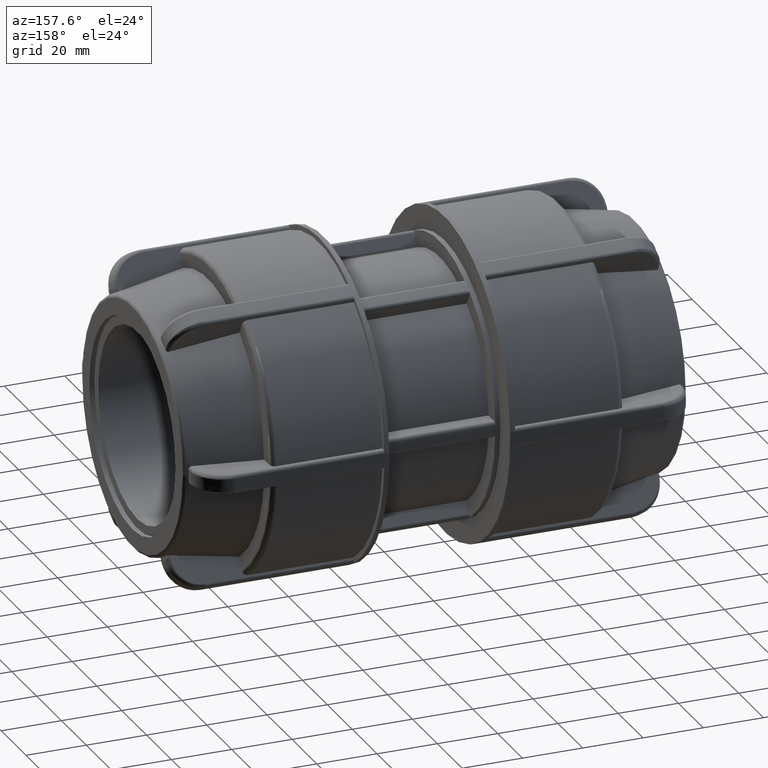
[diagram: clean part render]
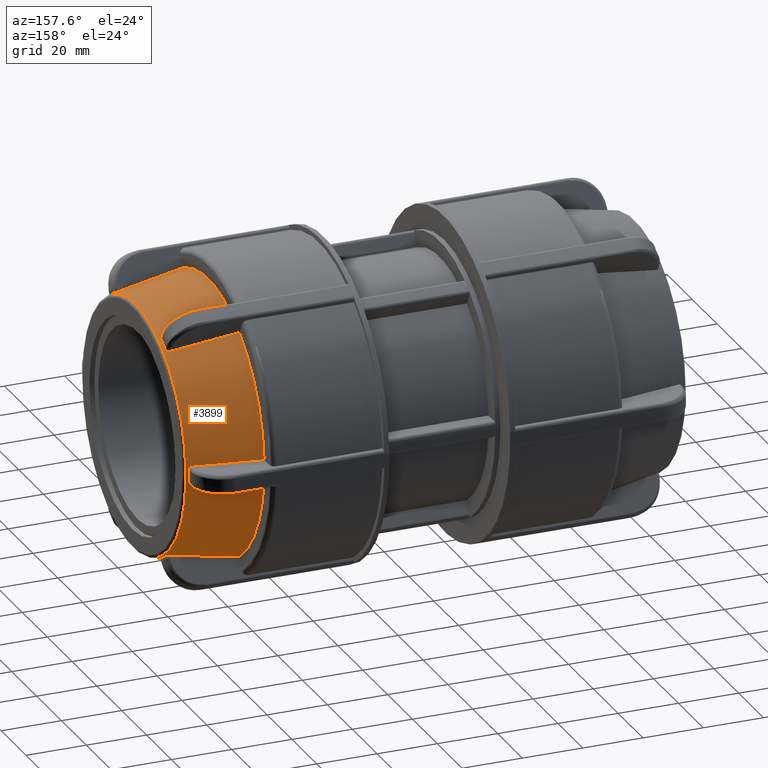
[diagram: same view with one face highlighted and labeled with its STEP entity id]
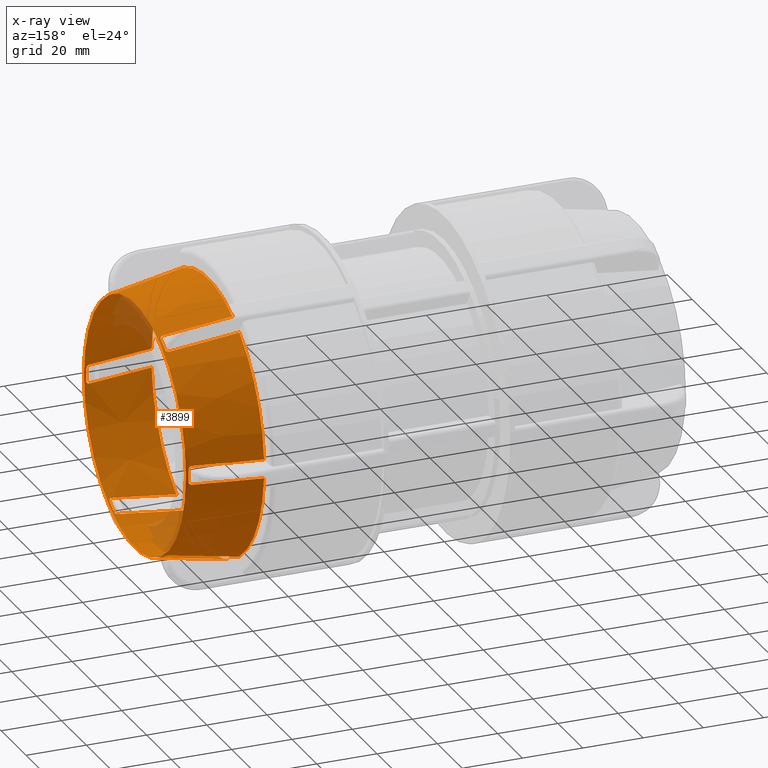
[diagram: x-ray of the same camera — body ghosted, the highlighted face saturated]
A machine part, auxiliary view. The second image highlights one B-rep face of the part: STEP entity #3899.
The next image is the same camera in x-ray: the body ghosted, the highlighted face saturated — about 6% of this face is hidden behind the body in this view.
In plain terms, the highlighted conical surface has half-angle 10 deg.
Its self-contained STEP definition (entity closure, byte-faithful):
#16=CONICAL_SURFACE('',#4328,43.1584954333735,10.);
#55=(
BOUNDED_CURVE()
B_SPLINE_CURVE(2,(#7132,#7133,#7134),.UNSPECIFIED.,.F.,.F.)
B_SPLINE_CURVE_WITH_KNOTS((3,3),(0.112674175919574,2.37425823566291),
 .UNSPECIFIED.)
CURVE()
GEOMETRIC_REPRESENTATION_ITEM()
RATIONAL_B_SPLINE_CURVE((1.00010313567523,1.00108663198251,1.))
REPRESENTATION_ITEM('')
);
#56=(
BOUNDED_CURVE()
B_SPLINE_CURVE(2,(#7295,#7296,#7297),.UNSPECIFIED.,.F.,.F.)
B_SPLINE_CURVE_WITH_KNOTS((3,3),(0.112674176025271,2.37425823566291),
 .UNSPECIFIED.)
CURVE()
GEOMETRIC_REPRESENTATION_ITEM()
RATIONAL_B_SPLINE_CURVE((1.00010313568858,1.00108663212211,1.))
REPRESENTATION_ITEM('')
);
#57=(
BOUNDED_CURVE()
B_SPLINE_CURVE(2,(#7458,#7459,#7460),.UNSPECIFIED.,.F.,.F.)
B_SPLINE_CURVE_WITH_KNOTS((3,3),(0.112674172713,2.37425823566291),
 .UNSPECIFIED.)
CURVE()
GEOMETRIC_REPRESENTATION_ITEM()
RATIONAL_B_SPLINE_CURVE((1.00010313539511,1.00108662906211,1.))
REPRESENTATION_ITEM('')
);
#58=(
BOUNDED_CURVE()
B_SPLINE_CURVE(2,(#7621,#7622,#7623),.UNSPECIFIED.,.F.,.F.)
B_SPLINE_CURVE_WITH_KNOTS((3,3),(0.112674172645509,2.37425823566291),
 .UNSPECIFIED.)
CURVE()
GEOMETRIC_REPRESENTATION_ITEM()
RATIONAL_B_SPLINE_CURVE((1.00010313538415,1.00108662894722,1.))
REPRESENTATION_ITEM('')
);
#59=(
BOUNDED_CURVE()
B_SPLINE_CURVE(2,(#7784,#7785,#7786),.UNSPECIFIED.,.F.,.F.)
B_SPLINE_CURVE_WITH_KNOTS((3,3),(0.112674175595181,2.37425823566291),
 .UNSPECIFIED.)
CURVE()
GEOMETRIC_REPRESENTATION_ITEM()
RATIONAL_B_SPLINE_CURVE((1.00010313564685,1.00108663168655,1.))
REPRESENTATION_ITEM('')
);
#60=(
BOUNDED_CURVE()
B_SPLINE_CURVE(2,(#7789,#7790,#7791),.UNSPECIFIED.,.F.,.F.)
B_SPLINE_CURVE_WITH_KNOTS((3,3),(0.,2.261584060177),.UNSPECIFIED.)
CURVE()
GEOMETRIC_REPRESENTATION_ITEM()
RATIONAL_B_SPLINE_CURVE((1.,1.00108663154662,1.00010313563346))
REPRESENTATION_ITEM('')
);
#61=(
BOUNDED_CURVE()
B_SPLINE_CURVE(2,(#7810,#7811,#7812),.UNSPECIFIED.,.F.,.F.)
B_SPLINE_CURVE_WITH_KNOTS((3,3),(0.,2.26158405973734),.UNSPECIFIED.)
CURVE()
GEOMETRIC_REPRESENTATION_ITEM()
RATIONAL_B_SPLINE_CURVE((1.,1.0010866318827,1.00010313566577))
REPRESENTATION_ITEM('')
);
#62=(
BOUNDED_CURVE()
B_SPLINE_CURVE(2,(#7831,#7832,#7833),.UNSPECIFIED.,.F.,.F.)
B_SPLINE_CURVE_WITH_KNOTS((3,3),(0.,2.26158406294979),.UNSPECIFIED.)
CURVE()
GEOMETRIC_REPRESENTATION_ITEM()
RATIONAL_B_SPLINE_CURVE((1.,1.00108662906256,1.00010313539516))
REPRESENTATION_ITEM('')
);
#63=(
BOUNDED_CURVE()
B_SPLINE_CURVE(2,(#7852,#7853,#7854),.UNSPECIFIED.,.F.,.F.)
B_SPLINE_CURVE_WITH_KNOTS((3,3),(0.,2.26158406273139),.UNSPECIFIED.)
CURVE()
GEOMETRIC_REPRESENTATION_ITEM()
RATIONAL_B_SPLINE_CURVE((1.,1.00108662926741,1.0001031354148))
REPRESENTATION_ITEM('')
);
#64=(
BOUNDED_CURVE()
B_SPLINE_CURVE(2,(#7873,#7874,#7875),.UNSPECIFIED.,.F.,.F.)
B_SPLINE_CURVE_WITH_KNOTS((3,3),(0.,2.26158405962467),.UNSPECIFIED.)
CURVE()
GEOMETRIC_REPRESENTATION_ITEM()
RATIONAL_B_SPLINE_CURVE((1.,1.00108663202404,1.00010313567928))
REPRESENTATION_ITEM('')
);
#65=(
BOUNDED_CURVE()
B_SPLINE_CURVE(2,(#7970,#7971,#7972),.UNSPECIFIED.,.F.,.F.)
B_SPLINE_CURVE_WITH_KNOTS((3,3),(0.,2.26158406269741),.UNSPECIFIED.)
CURVE()
GEOMETRIC_REPRESENTATION_ITEM()
RATIONAL_B_SPLINE_CURVE((1.,1.00108662939929,1.00010313542735))
REPRESENTATION_ITEM('')
);
#66=(
BOUNDED_CURVE()
B_SPLINE_CURVE(2,(#8004,#8005,#8006),.UNSPECIFIED.,.F.,.F.)
B_SPLINE_CURVE_WITH_KNOTS((3,3),(0.112674172837805,2.3742582356629),
 .UNSPECIFIED.)
CURVE()
GEOMETRIC_REPRESENTATION_ITEM()
RATIONAL_B_SPLINE_CURVE((1.00010313541415,1.00108662926151,1.))
REPRESENTATION_ITEM('')
);
#117=B_SPLINE_CURVE_WITH_KNOTS('',3,(#6978,#6979,#6980,#6981,#6982,#6983,
#6984,#6985,#6986,#6987,#6988,#6989,#6990),.UNSPECIFIED.,.F.,.F.,(4,3,2,
2,2,4),(-0.00143953444562622,0.,0.0402779836798522,0.0805559673597044,0.120299891200479,
0.159101218663025),.UNSPECIFIED.);
#120=B_SPLINE_CURVE_WITH_KNOTS('',3,(#7100,#7101,#7102,#7103,#7104,#7105,
#7106,#7107,#7108,#7109,#7110,#7111,#7112),.UNSPECIFIED.,.F.,.F.,(4,2,2,
2,3,4),(-0.159101218663025,-0.120299891200479,-0.0805559673597044,-0.0402779836798522,
0.,0.00143953444622612),.UNSPECIFIED.);
#124=B_SPLINE_CURVE_WITH_KNOTS('',3,(#7189,#7190,#7191,#7192,#7193,#7194,
#7195,#7196,#7197,#7198,#7199,#7200,#7201),.UNSPECIFIED.,.F.,.F.,(4,3,2,
2,2,4),(-0.0014395344456291,0.,0.0402779836798521,0.0805559673597042,0.120299891200479,
0.159101218663025),.UNSPECIFIED.);
#127=B_SPLINE_CURVE_WITH_KNOTS('',3,(#7263,#7264,#7265,#7266,#7267,#7268,
#7269,#7270,#7271,#7272,#7273,#7274,#7275),.UNSPECIFIED.,.F.,.F.,(4,2,2,
2,3,4),(-0.159101218663024,-0.120299891200478,-0.0805559673597042,-0.0402779836798521,
0.,0.00143953444622537),.UNSPECIFIED.);
#131=B_SPLINE_CURVE_WITH_KNOTS('',3,(#7352,#7353,#7354,#7355,#7356,#7357,
#7358,#7359,#7360,#7361,#7362,#7363,#7364),.UNSPECIFIED.,.F.,.F.,(4,3,2,
2,2,4),(-0.00143953444560737,0.,0.0402779836798513,0.0805559673597026,0.120299891200477,
0.159101218663023),.UNSPECIFIED.);
#134=B_SPLINE_CURVE_WITH_KNOTS('',3,(#7426,#7427,#7428,#7429,#7430,#7431,
#7432,#7433,#7434,#7435,#7436,#7437,#7438),.UNSPECIFIED.,.F.,.F.,(4,2,2,
2,3,4),(-0.159101218663025,-0.120299891200478,-0.0805559673597043,-0.0402779836798521,
0.,0.00143953444620478),.UNSPECIFIED.);
#138=B_SPLINE_CURVE_WITH_KNOTS('',3,(#7515,#7516,#7517,#7518,#7519,#7520,
#7521,#7522,#7523,#7524,#7525,#7526,#7527),.UNSPECIFIED.,.F.,.F.,(4,3,2,
2,2,4),(-0.00143953444560912,0.,0.040277983679852,0.0805559673597041,0.120299891200479,
0.159101218663025),.UNSPECIFIED.);
#141=B_SPLINE_CURVE_WITH_KNOTS('',3,(#7589,#7590,#7591,#7592,#7593,#7594,
#7595,#7596,#7597,#7598,#7599,#7600,#7601),.UNSPECIFIED.,.F.,.F.,(4,2,2,
2,3,4),(-0.159101218663025,-0.120299891200478,-0.0805559673597045,-0.0402779836798522,
0.,0.00143953444620219),.UNSPECIFIED.);
#145=B_SPLINE_CURVE_WITH_KNOTS('',3,(#7678,#7679,#7680,#7681,#7682,#7683,
#7684,#7685,#7686,#7687,#7688,#7689,#7690),.UNSPECIFIED.,.F.,.F.,(4,3,2,
2,2,4),(-0.00143953444563195,0.,0.0402779836798521,0.0805559673597042,0.120299891200478,
0.159101218663025),.UNSPECIFIED.);
#148=B_SPLINE_CURVE_WITH_KNOTS('',3,(#7752,#7753,#7754,#7755,#7756,#7757,
#7758,#7759,#7760,#7761,#7762,#7763,#7764),.UNSPECIFIED.,.F.,.F.,(4,2,2,
2,3,4),(-0.159101218663025,-0.120299891200478,-0.0805559673597043,-0.0402779836798521,
0.,0.00143953444622232),.UNSPECIFIED.);
#157=B_SPLINE_CURVE_WITH_KNOTS('',3,(#7974,#7975,#7976,#7977,#7978,#7979,
#7980,#7981,#7982,#7983,#7984,#7985,#7986),.UNSPECIFIED.,.F.,.F.,(4,3,2,
2,2,4),(-0.00143953444561129,0.,0.0402779836798522,0.0805559673597043,0.120299891200478,
0.159101218663024),.UNSPECIFIED.);
#158=B_SPLINE_CURVE_WITH_KNOTS('',3,(#7990,#7991,#7992,#7993,#7994,#7995,
#7996,#7997,#7998,#7999,#8000,#8001,#8002),.UNSPECIFIED.,.F.,.F.,(4,2,2,
2,3,4),(-0.159101218663025,-0.120299891200478,-0.0805559673597042,-0.0402779836798521,
0.,0.00143953444620398),.UNSPECIFIED.);
#209=FACE_BOUND('',#766,.T.);
#513=FACE_OUTER_BOUND('',#765,.T.);
#765=EDGE_LOOP('',(#3480,#3481,#3482,#3483,#3484,#3485,#3486,#3487,#3488,
#3489,#3490,#3491,#3492,#3493,#3494,#3495,#3496,#3497,#3498,#3499,#3500,
#3501,#3502,#3503,#3504,#3505,#3506,#3507,#3508,#3509,#3510,#3511,#3512,
#3513,#3514,#3515));
#766=EDGE_LOOP('',(#3516));
#1396=CIRCLE('',#4200,41.2444660577832);
#1417=CIRCLE('',#4229,41.2444660577832);
#1425=CIRCLE('',#4244,41.2444660577832);
#1433=CIRCLE('',#4259,41.2444660577832);
#1441=CIRCLE('',#4274,41.2444660577832);
#1466=CIRCLE('',#4329,45.3669908667471);
#1467=CIRCLE('',#4330,41.2444660577832);
#1468=CIRCLE('',#4331,45.3669908667471);
#1469=CIRCLE('',#4332,45.3669908667471);
#1470=CIRCLE('',#4333,45.3669908667471);
#1471=CIRCLE('',#4334,45.3669908667471);
#1472=CIRCLE('',#4335,45.3669908667471);
#1473=CIRCLE('',#4336,41.0957081218349);
#1716=VERTEX_POINT('',#6976);
#1717=VERTEX_POINT('',#6977);
#1719=VERTEX_POINT('',#6996);
#1746=VERTEX_POINT('',#7099);
#1750=VERTEX_POINT('',#7130);
#1755=VERTEX_POINT('',#7187);
#1756=VERTEX_POINT('',#7188);
#1758=VERTEX_POINT('',#7207);
#1762=VERTEX_POINT('',#7262);
#1766=VERTEX_POINT('',#7293);
#1771=VERTEX_POINT('',#7350);
#1772=VERTEX_POINT('',#7351);
#1774=VERTEX_POINT('',#7370);
#1778=VERTEX_POINT('',#7425);
#1782=VERTEX_POINT('',#7456);
#1787=VERTEX_POINT('',#7513);
#1788=VERTEX_POINT('',#7514);
#1790=VERTEX_POINT('',#7533);
#1794=VERTEX_POINT('',#7588);
#1798=VERTEX_POINT('',#7619);
#1803=VERTEX_POINT('',#7676);
#1804=VERTEX_POINT('',#7677);
#1806=VERTEX_POINT('',#7696);
#1810=VERTEX_POINT('',#7751);
#1814=VERTEX_POINT('',#7782);
#1815=VERTEX_POINT('',#7788);
#1819=VERTEX_POINT('',#7809);
#1823=VERTEX_POINT('',#7830);
#1827=VERTEX_POINT('',#7851);
#1831=VERTEX_POINT('',#7872);
#1844=VERTEX_POINT('',#7967);
#1845=VERTEX_POINT('',#7969);
#1846=VERTEX_POINT('',#7973);
#1847=VERTEX_POINT('',#7987);
#1848=VERTEX_POINT('',#7989);
#1849=VERTEX_POINT('',#8003);
#1850=VERTEX_POINT('',#8012);
#2215=EDGE_CURVE('',#1716,#1717,#117,.F.);
#2220=EDGE_CURVE('',#1716,#1719,#1396,.T.);
#2251=EDGE_CURVE('',#1746,#1719,#120,.F.);
#2257=EDGE_CURVE('',#1746,#1750,#55,.T.);
#2264=EDGE_CURVE('',#1755,#1756,#124,.F.);
#2269=EDGE_CURVE('',#1755,#1758,#1417,.T.);
#2276=EDGE_CURVE('',#1762,#1758,#127,.F.);
#2282=EDGE_CURVE('',#1762,#1766,#56,.T.);
#2289=EDGE_CURVE('',#1771,#1772,#131,.F.);
#2294=EDGE_CURVE('',#1771,#1774,#1425,.T.);
#2301=EDGE_CURVE('',#1778,#1774,#134,.F.);
#2307=EDGE_CURVE('',#1778,#1782,#57,.T.);
#2314=EDGE_CURVE('',#1787,#1788,#138,.F.);
#2319=EDGE_CURVE('',#1787,#1790,#1433,.T.);
#2326=EDGE_CURVE('',#1794,#1790,#141,.F.);
#2332=EDGE_CURVE('',#1794,#1798,#58,.T.);
#2339=EDGE_CURVE('',#1803,#1804,#145,.F.);
#2344=EDGE_CURVE('',#1803,#1806,#1441,.T.);
#2351=EDGE_CURVE('',#1810,#1806,#148,.F.);
#2357=EDGE_CURVE('',#1810,#1814,#59,.T.);
#2358=EDGE_CURVE('',#1815,#1717,#60,.T.);
#2363=EDGE_CURVE('',#1819,#1756,#61,.T.);
#2368=EDGE_CURVE('',#1823,#1772,#62,.T.);
#2373=EDGE_CURVE('',#1827,#1788,#63,.T.);
#2378=EDGE_CURVE('',#1831,#1804,#64,.T.);
#2410=EDGE_CURVE('',#1750,#1844,#1466,.T.);
#2411=EDGE_CURVE('',#1844,#1845,#65,.T.);
#2412=EDGE_CURVE('',#1846,#1845,#157,.F.);
#2413=EDGE_CURVE('',#1846,#1847,#1467,.T.);
#2414=EDGE_CURVE('',#1848,#1847,#158,.F.);
#2415=EDGE_CURVE('',#1848,#1849,#66,.T.);
#2416=EDGE_CURVE('',#1849,#1831,#1468,.T.);
#2417=EDGE_CURVE('',#1814,#1827,#1469,.T.);
#2418=EDGE_CURVE('',#1798,#1823,#1470,.T.);
#2419=EDGE_CURVE('',#1782,#1819,#1471,.T.);
#2420=EDGE_CURVE('',#1766,#1815,#1472,.T.);
#2421=EDGE_CURVE('',#1850,#1850,#1473,.T.);
#3480=ORIENTED_EDGE('',*,*,#2358,.T.);
#3481=ORIENTED_EDGE('',*,*,#2215,.F.);
#3482=ORIENTED_EDGE('',*,*,#2220,.T.);
#3483=ORIENTED_EDGE('',*,*,#2251,.F.);
#3484=ORIENTED_EDGE('',*,*,#2257,.T.);
#3485=ORIENTED_EDGE('',*,*,#2410,.T.);
#3486=ORIENTED_EDGE('',*,*,#2411,.T.);
#3487=ORIENTED_EDGE('',*,*,#2412,.F.);
#3488=ORIENTED_EDGE('',*,*,#2413,.T.);
#3489=ORIENTED_EDGE('',*,*,#2414,.F.);
#3490=ORIENTED_EDGE('',*,*,#2415,.T.);
#3491=ORIENTED_EDGE('',*,*,#2416,.T.);
#3492=ORIENTED_EDGE('',*,*,#2378,.T.);
#3493=ORIENTED_EDGE('',*,*,#2339,.F.);
#3494=ORIENTED_EDGE('',*,*,#2344,.T.);
#3495=ORIENTED_EDGE('',*,*,#2351,.F.);
#3496=ORIENTED_EDGE('',*,*,#2357,.T.);
#3497=ORIENTED_EDGE('',*,*,#2417,.T.);
#3498=ORIENTED_EDGE('',*,*,#2373,.T.);
#3499=ORIENTED_EDGE('',*,*,#2314,.F.);
#3500=ORIENTED_EDGE('',*,*,#2319,.T.);
#3501=ORIENTED_EDGE('',*,*,#2326,.F.);
#3502=ORIENTED_EDGE('',*,*,#2332,.T.);
#3503=ORIENTED_EDGE('',*,*,#2418,.T.);
#3504=ORIENTED_EDGE('',*,*,#2368,.T.);
#3505=ORIENTED_EDGE('',*,*,#2289,.F.);
#3506=ORIENTED_EDGE('',*,*,#2294,.T.);
#3507=ORIENTED_EDGE('',*,*,#2301,.F.);
#3508=ORIENTED_EDGE('',*,*,#2307,.T.);
#3509=ORIENTED_EDGE('',*,*,#2419,.T.);
#3510=ORIENTED_EDGE('',*,*,#2363,.T.);
#3511=ORIENTED_EDGE('',*,*,#2264,.F.);
#3512=ORIENTED_EDGE('',*,*,#2269,.T.);
#3513=ORIENTED_EDGE('',*,*,#2276,.F.);
#3514=ORIENTED_EDGE('',*,*,#2282,.T.);
#3515=ORIENTED_EDGE('',*,*,#2420,.T.);
#3516=ORIENTED_EDGE('',*,*,#2421,.F.);
#3899=ADVANCED_FACE('',(#513,#209),#16,.T.);
#4200=AXIS2_PLACEMENT_3D('',#6998,#5068,#5069);
#4229=AXIS2_PLACEMENT_3D('',#7209,#5146,#5147);
#4244=AXIS2_PLACEMENT_3D('',#7372,#5185,#5186);
#4259=AXIS2_PLACEMENT_3D('',#7535,#5224,#5225);
#4274=AXIS2_PLACEMENT_3D('',#7698,#5263,#5264);
#4328=AXIS2_PLACEMENT_3D('',#7966,#5395,#5396);
#4329=AXIS2_PLACEMENT_3D('',#7968,#5397,#5398);
#4330=AXIS2_PLACEMENT_3D('',#7988,#5399,#5400);
#4331=AXIS2_PLACEMENT_3D('',#8007,#5401,#5402);
#4332=AXIS2_PLACEMENT_3D('',#8008,#5403,#5404);
#4333=AXIS2_PLACEMENT_3D('',#8009,#5405,#5406);
#4334=AXIS2_PLACEMENT_3D('',#8010,#5407,#5408);
#4335=AXIS2_PLACEMENT_3D('',#8011,#5409,#5410);
#4336=AXIS2_PLACEMENT_3D('',#8013,#5411,#5412);
#5068=DIRECTION('center_axis',(1.,3.85505303731977E-16,1.37427153288602E-16));
#5069=DIRECTION('ref_axis',(-4.64848907677115E-16,1.,0.));
#5146=DIRECTION('center_axis',(1.,5.44192511622254E-16,1.37427153288602E-16));
#5147=DIRECTION('ref_axis',(-4.64848907677115E-16,1.,0.));
#5185=DIRECTION('center_axis',(1.,6.23536115567392E-16,-3.69778549322349E-32));
#5186=DIRECTION('ref_axis',(-4.64848907677115E-16,1.,0.));
#5224=DIRECTION('center_axis',(1.,5.44192511622254E-16,-1.37427153288602E-16));
#5225=DIRECTION('ref_axis',(-4.64848907677115E-16,1.,0.));
#5263=DIRECTION('center_axis',(1.,3.85505303731977E-16,-1.37427153288602E-16));
#5264=DIRECTION('ref_axis',(-4.64848907677115E-16,1.,0.));
#5395=DIRECTION('center_axis',(-1.,-3.06161699786838E-16,0.));
#5396=DIRECTION('ref_axis',(-4.64848907677115E-16,1.,0.));
#5397=DIRECTION('center_axis',(1.,3.06161699786838E-16,0.));
#5398=DIRECTION('ref_axis',(0.,0.,-1.));
#5399=DIRECTION('center_axis',(1.,3.06161699786838E-16,0.));
#5400=DIRECTION('ref_axis',(-4.64848907677115E-16,1.,0.));
#5401=DIRECTION('center_axis',(1.,3.06161699786838E-16,0.));
#5402=DIRECTION('ref_axis',(0.,0.,-1.));
#5403=DIRECTION('center_axis',(1.,3.06161699786838E-16,0.));
#5404=DIRECTION('ref_axis',(0.,0.,-1.));
#5405=DIRECTION('center_axis',(1.,3.06161699786838E-16,0.));
#5406=DIRECTION('ref_axis',(0.,0.,-1.));
#5407=DIRECTION('center_axis',(1.,3.06161699786838E-16,0.));
#5408=DIRECTION('ref_axis',(0.,0.,-1.));
#5409=DIRECTION('center_axis',(1.,3.06161699786838E-16,0.));
#5410=DIRECTION('ref_axis',(0.,0.,-1.));
#5411=DIRECTION('center_axis',(1.,4.32248748247372E-16,-4.32248748247372E-16));
#5412=DIRECTION('ref_axis',(4.32248748247372E-16,-1.,3.06161699786838E-17));
#6976=CARTESIAN_POINT('',(81.83,18.785746030917,-36.7178665836336));
#6977=CARTESIAN_POINT('',(80.77,17.9277464254282,-37.3517676740529));
#6978=CARTESIAN_POINT('Ctrl Pts',(80.7700000000001,17.9277464254283,-37.3517676740531));
#6979=CARTESIAN_POINT('Ctrl Pts',(80.7747471776111,17.9273266827695,-37.351040658442));
#6980=CARTESIAN_POINT('Ctrl Pts',(80.7794839896438,17.9269366922554,-37.3503013899153));
#6981=CARTESIAN_POINT('Ctrl Pts',(80.7842095385864,17.9265761423973,-37.3495501937631));
#6982=CARTESIAN_POINT('Ctrl Pts',(80.9164297739318,17.9164880049836,-37.3285318246276));
#6983=CARTESIAN_POINT('Ctrl Pts',(81.0576462303605,17.9294799246473,-37.294706201645));
#6984=CARTESIAN_POINT('Ctrl Pts',(81.3174540635503,18.0070749796654,-37.2064150566249));
#6985=CARTESIAN_POINT('Ctrl Pts',(81.4360317549525,18.0716800958512,-37.1519110092989));
#6986=CARTESIAN_POINT('Ctrl Pts',(81.6216100340281,18.2268751812463,-37.039548867313));
#6987=CARTESIAN_POINT('Ctrl Pts',(81.7013233193684,18.3272275934976,-36.9744205401172));
#6988=CARTESIAN_POINT('Ctrl Pts',(81.8048441060066,18.5492039370636,-36.8431143788378));
#6989=CARTESIAN_POINT('Ctrl Pts',(81.83,18.670245383266,-36.7769595003812));
#6990=CARTESIAN_POINT('Ctrl Pts',(81.83,18.785746030917,-36.7178665836336));
#6996=CARTESIAN_POINT('',(81.83,22.4057322187359,-34.6278665836336));
#6998=CARTESIAN_POINT('Origin',(81.83,2.5053211893557E-14,0.));
#7099=CARTESIAN_POINT('',(80.77,23.3837064692702,-34.2017676740531));
#7100=CARTESIAN_POINT('Ctrl Pts',(81.83,22.4057322187359,-34.6278665836336));
#7101=CARTESIAN_POINT('Ctrl Pts',(81.83,22.5146585096486,-34.5573865469881));
#7102=CARTESIAN_POINT('Ctrl Pts',(81.8048441060066,22.6324710380775,-34.4856390188944));
#7103=CARTESIAN_POINT('Ctrl Pts',(81.7013233193684,22.8571736812018,-34.3590549469667));
#7104=CARTESIAN_POINT('Ctrl Pts',(81.6216100340281,22.963752673185,-34.3047113722239));
#7105=CARTESIAN_POINT('Ctrl Pts',(81.4360317549525,23.138658685266,-34.2264895567222));
#7106=CARTESIAN_POINT('Ctrl Pts',(81.3174540635502,23.2181631329523,-34.1977919085539));
#7107=CARTESIAN_POINT('Ctrl Pts',(81.0576462303605,23.3334230349779,-34.1747381922102));
#7108=CARTESIAN_POINT('Ctrl Pts',(80.9164297739318,23.3692128436116,-34.1803996712288));
#7109=CARTESIAN_POINT('Ctrl Pts',(80.7842095385864,23.3823712165221,-34.1996454390737));
#7110=CARTESIAN_POINT('Ctrl Pts',(80.7794839896418,23.3828414965444,-34.2003332824865));
#7111=CARTESIAN_POINT('Ctrl Pts',(80.7747471776092,23.3832867266116,-34.2010406584423));
#7112=CARTESIAN_POINT('Ctrl Pts',(80.77,23.3837064692702,-34.2017676740531));
#7130=CARTESIAN_POINT('',(58.45,25.3567303205097,-37.619145228945));
#7132=CARTESIAN_POINT('Ctrl Pts',(80.7700000000002,23.3837064692702,-34.2017676740531));
#7133=CARTESIAN_POINT('Ctrl Pts',(70.1187030623368,24.3254878943814,-35.8329809519702));
#7134=CARTESIAN_POINT('Ctrl Pts',(58.45,25.3567303205097,-37.619145228945));
#7187=CARTESIAN_POINT('',(81.8300000000001,-22.4057322187359,-34.6278665836335));
#7188=CARTESIAN_POINT('',(80.7700000000001,-23.3837064692702,-34.201767674053));
#7189=CARTESIAN_POINT('Ctrl Pts',(80.7700000000001,-23.3837064692702,-34.2017676740531));
#7190=CARTESIAN_POINT('Ctrl Pts',(80.7747471776112,-23.3832867266115,-34.201040658442));
#7191=CARTESIAN_POINT('Ctrl Pts',(80.7794839896438,-23.3828414965442,-34.2003332824862));
#7192=CARTESIAN_POINT('Ctrl Pts',(80.7842095385864,-23.3823712165221,-34.1996454390736));
#7193=CARTESIAN_POINT('Ctrl Pts',(80.9164297739318,-23.3692128436116,-34.1803996712288));
#7194=CARTESIAN_POINT('Ctrl Pts',(81.0576462303605,-23.3334230349779,-34.1747381922102));
#7195=CARTESIAN_POINT('Ctrl Pts',(81.3174540635503,-23.2181631329523,-34.1977919085538));
#7196=CARTESIAN_POINT('Ctrl Pts',(81.4360317549526,-23.138658685266,-34.2264895567222));
#7197=CARTESIAN_POINT('Ctrl Pts',(81.6216100340281,-22.963752673185,-34.3047113722238));
#7198=CARTESIAN_POINT('Ctrl Pts',(81.7013233193685,-22.8571736812018,-34.3590549469667));
#7199=CARTESIAN_POINT('Ctrl Pts',(81.8048441060066,-22.6324710380775,-34.4856390188943));
#7200=CARTESIAN_POINT('Ctrl Pts',(81.83,-22.5146585096486,-34.557386546988));
#7201=CARTESIAN_POINT('Ctrl Pts',(81.83,-22.4057322187359,-34.6278665836335));
#7207=CARTESIAN_POINT('',(81.8300000000001,-18.785746030917,-36.7178665836336));
#7209=CARTESIAN_POINT('Origin',(81.83,2.5053211893557E-14,0.));
#7262=CARTESIAN_POINT('',(80.7700000000001,-17.9277464254283,-37.3517676740531));
#7263=CARTESIAN_POINT('Ctrl Pts',(81.83,-18.785746030917,-36.7178665836336));
#7264=CARTESIAN_POINT('Ctrl Pts',(81.83,-18.670245383266,-36.7769595003812));
#7265=CARTESIAN_POINT('Ctrl Pts',(81.8048441060066,-18.5492039370636,-36.8431143788378));
#7266=CARTESIAN_POINT('Ctrl Pts',(81.7013233193685,-18.3272275934976,-36.9744205401172));
#7267=CARTESIAN_POINT('Ctrl Pts',(81.6216100340281,-18.2268751812463,-37.039548867313));
#7268=CARTESIAN_POINT('Ctrl Pts',(81.4360317549526,-18.0716800958512,-37.1519110092989));
#7269=CARTESIAN_POINT('Ctrl Pts',(81.3174540635503,-18.0070749796654,-37.2064150566249));
#7270=CARTESIAN_POINT('Ctrl Pts',(81.0576462303605,-17.9294799246473,-37.2947062016449));
#7271=CARTESIAN_POINT('Ctrl Pts',(80.9164297739318,-17.9164880049836,-37.3285318246276));
#7272=CARTESIAN_POINT('Ctrl Pts',(80.7842095385864,-17.9265761423973,-37.349550193763));
#7273=CARTESIAN_POINT('Ctrl Pts',(80.7794839896418,-17.9269366922556,-37.3503013899156));
#7274=CARTESIAN_POINT('Ctrl Pts',(80.7747471776093,-17.9273266827697,-37.3510406584423));
#7275=CARTESIAN_POINT('Ctrl Pts',(80.7700000000001,-17.9277464254283,-37.3517676740531));
#7293=CARTESIAN_POINT('',(58.45,-19.9007702766677,-40.769145228945));
#7295=CARTESIAN_POINT('Ctrl Pts',(80.7700000000003,-17.9277464254282,-37.3517676740531));
#7296=CARTESIAN_POINT('Ctrl Pts',(70.1187030737679,-18.8695278495289,-38.98298095022));
#7297=CARTESIAN_POINT('Ctrl Pts',(58.45,-19.9007702766677,-40.769145228945));
#7350=CARTESIAN_POINT('',(81.8300000000001,-41.1914782496529,2.09000000000001));
#7351=CARTESIAN_POINT('',(80.7700000000001,-41.3114528946971,3.15000000000001));
#7352=CARTESIAN_POINT('Ctrl Pts',(80.7700000000003,-41.3114528946984,3.15000000000001));
#7353=CARTESIAN_POINT('Ctrl Pts',(80.7747471776113,-41.3106134093809,3.15000000000001));
#7354=CARTESIAN_POINT('Ctrl Pts',(80.7794839896439,-41.3097781887996,3.14996810742911));
#7355=CARTESIAN_POINT('Ctrl Pts',(80.7842095385864,-41.3089473589195,3.1499047546894));
#7356=CARTESIAN_POINT('Ctrl Pts',(80.9164297739318,-41.2857008485952,3.14813215339883));
#7357=CARTESIAN_POINT('Ctrl Pts',(81.0576462303605,-41.2629029596252,3.11996800943481));
#7358=CARTESIAN_POINT('Ctrl Pts',(81.3174540635503,-41.2252381126177,3.00862314807112));
#7359=CARTESIAN_POINT('Ctrl Pts',(81.4360317549526,-41.2103387811172,2.92542145257673));
#7360=CARTESIAN_POINT('Ctrl Pts',(81.6216100340281,-41.1906278544313,2.73483749508913));
#7361=CARTESIAN_POINT('Ctrl Pts',(81.7013233193685,-41.1844012746995,2.61536559315054));
#7362=CARTESIAN_POINT('Ctrl Pts',(81.8048441060066,-41.1816749751411,2.35747535994352));
#7363=CARTESIAN_POINT('Ctrl Pts',(81.8300000000001,-41.1849038929145,2.21957295339315));
#7364=CARTESIAN_POINT('Ctrl Pts',(81.8300000000001,-41.1914782496529,2.09000000000001));
#7370=CARTESIAN_POINT('',(81.83,-41.1914782496529,-2.08999999999999));
#7372=CARTESIAN_POINT('Origin',(81.83,2.5053211893557E-14,0.));
#7425=CARTESIAN_POINT('',(80.77,-41.3114528946971,-3.14999999999999));
#7426=CARTESIAN_POINT('Ctrl Pts',(81.83,-41.1914782496529,-2.08999999999999));
#7427=CARTESIAN_POINT('Ctrl Pts',(81.83,-41.1849038929145,-2.21957295339313));
#7428=CARTESIAN_POINT('Ctrl Pts',(81.8048441060066,-41.1816749751411,-2.35747535994349));
#7429=CARTESIAN_POINT('Ctrl Pts',(81.7013233193685,-41.1844012746995,-2.61536559315051));
#7430=CARTESIAN_POINT('Ctrl Pts',(81.6216100340281,-41.1906278544313,-2.7348374950891));
#7431=CARTESIAN_POINT('Ctrl Pts',(81.4360317549526,-41.2103387811172,-2.92542145257671));
#7432=CARTESIAN_POINT('Ctrl Pts',(81.3174540635503,-41.2252381126177,-3.00862314807109));
#7433=CARTESIAN_POINT('Ctrl Pts',(81.0576462303605,-41.2629029596252,-3.11996800943478));
#7434=CARTESIAN_POINT('Ctrl Pts',(80.9164297739318,-41.2857008485952,-3.14813215339881));
#7435=CARTESIAN_POINT('Ctrl Pts',(80.7842095385864,-41.3089473589195,-3.14990475468937));
#7436=CARTESIAN_POINT('Ctrl Pts',(80.7794839896419,-41.3097781887999,-3.14996810742911));
#7437=CARTESIAN_POINT('Ctrl Pts',(80.7747471776094,-41.3106134093813,-3.14999999999999));
#7438=CARTESIAN_POINT('Ctrl Pts',(80.7700000000003,-41.3114528946985,-3.14999999999999));
#7456=CARTESIAN_POINT('',(58.45,-45.2575005971774,-3.14999999999999));
#7458=CARTESIAN_POINT('Ctrl Pts',(80.7700000000003,-41.3114528946971,-3.14999999999999));
#7459=CARTESIAN_POINT('Ctrl Pts',(70.1187027295494,-43.1950158037578,-3.14999999999999));
#7460=CARTESIAN_POINT('Ctrl Pts',(58.45,-45.2575005971774,-3.14999999999999));
#7513=CARTESIAN_POINT('',(81.83,-18.7857460309169,36.7178665836336));
#7514=CARTESIAN_POINT('',(80.77,-17.9277464254276,37.351767674052));
#7515=CARTESIAN_POINT('Ctrl Pts',(80.7700000000003,-17.9277464254282,37.3517676740531));
#7516=CARTESIAN_POINT('Ctrl Pts',(80.7747471776113,-17.9273266827695,37.351040658442));
#7517=CARTESIAN_POINT('Ctrl Pts',(80.7794839896438,-17.9269366922554,37.3503013899153));
#7518=CARTESIAN_POINT('Ctrl Pts',(80.7842095385864,-17.9265761423973,37.3495501937631));
#7519=CARTESIAN_POINT('Ctrl Pts',(80.9164297739318,-17.9164880049836,37.3285318246276));
#7520=CARTESIAN_POINT('Ctrl Pts',(81.0576462303605,-17.9294799246473,37.294706201645));
#7521=CARTESIAN_POINT('Ctrl Pts',(81.3174540635503,-18.0070749796653,37.2064150566249));
#7522=CARTESIAN_POINT('Ctrl Pts',(81.4360317549525,-18.0716800958512,37.1519110092989));
#7523=CARTESIAN_POINT('Ctrl Pts',(81.6216100340281,-18.2268751812462,37.039548867313));
#7524=CARTESIAN_POINT('Ctrl Pts',(81.7013233193684,-18.3272275934976,36.9744205401172));
#7525=CARTESIAN_POINT('Ctrl Pts',(81.8048441060066,-18.5492039370636,36.8431143788378));
#7526=CARTESIAN_POINT('Ctrl Pts',(81.83,-18.6702453832659,36.7769595003812));
#7527=CARTESIAN_POINT('Ctrl Pts',(81.83,-18.7857460309169,36.7178665836336));
#7533=CARTESIAN_POINT('',(81.8300000000001,-22.4057322187359,34.6278665836336));
#7535=CARTESIAN_POINT('Origin',(81.83,2.5053211893557E-14,0.));
#7588=CARTESIAN_POINT('',(80.77,-23.3837064692695,34.2017676740519));
#7589=CARTESIAN_POINT('Ctrl Pts',(81.83,-22.4057322187359,34.6278665836336));
#7590=CARTESIAN_POINT('Ctrl Pts',(81.83,-22.5146585096486,34.5573865469881));
#7591=CARTESIAN_POINT('Ctrl Pts',(81.8048441060066,-22.6324710380774,34.4856390188944));
#7592=CARTESIAN_POINT('Ctrl Pts',(81.7013233193684,-22.8571736812018,34.3590549469667));
#7593=CARTESIAN_POINT('Ctrl Pts',(81.6216100340281,-22.963752673185,34.3047113722239));
#7594=CARTESIAN_POINT('Ctrl Pts',(81.4360317549525,-23.138658685266,34.2264895567222));
#7595=CARTESIAN_POINT('Ctrl Pts',(81.3174540635503,-23.2181631329523,34.1977919085538));
#7596=CARTESIAN_POINT('Ctrl Pts',(81.0576462303605,-23.3334230349779,34.1747381922102));
#7597=CARTESIAN_POINT('Ctrl Pts',(80.9164297739318,-23.3692128436116,34.1803996712288));
#7598=CARTESIAN_POINT('Ctrl Pts',(80.7842095385864,-23.3823712165221,34.1996454390737));
#7599=CARTESIAN_POINT('Ctrl Pts',(80.7794839896419,-23.3828414965443,34.2003332824865));
#7600=CARTESIAN_POINT('Ctrl Pts',(80.7747471776094,-23.3832867266116,34.2010406584423));
#7601=CARTESIAN_POINT('Ctrl Pts',(80.7700000000003,-23.3837064692702,34.2017676740531));
#7619=CARTESIAN_POINT('',(58.45,-25.3567303205096,37.619145228945));
#7621=CARTESIAN_POINT('Ctrl Pts',(80.7700000000002,-23.3837064692695,34.2017676740519));
#7622=CARTESIAN_POINT('Ctrl Pts',(70.118702721977,-24.3254879244693,35.832981004084));
#7623=CARTESIAN_POINT('Ctrl Pts',(58.45,-25.3567303205096,37.619145228945));
#7676=CARTESIAN_POINT('',(81.83,22.405732218736,34.6278665836336));
#7677=CARTESIAN_POINT('',(80.77,23.3837064692703,34.2017676740531));
#7678=CARTESIAN_POINT('Ctrl Pts',(80.77,23.3837064692703,34.2017676740531));
#7679=CARTESIAN_POINT('Ctrl Pts',(80.7747471776111,23.3832867266115,34.201040658442));
#7680=CARTESIAN_POINT('Ctrl Pts',(80.7794839896438,23.3828414965442,34.2003332824862));
#7681=CARTESIAN_POINT('Ctrl Pts',(80.7842095385864,23.3823712165222,34.1996454390737));
#7682=CARTESIAN_POINT('Ctrl Pts',(80.9164297739318,23.3692128436116,34.1803996712288));
#7683=CARTESIAN_POINT('Ctrl Pts',(81.0576462303605,23.333423034978,34.1747381922102));
#7684=CARTESIAN_POINT('Ctrl Pts',(81.3174540635503,23.2181631329524,34.1977919085538));
#7685=CARTESIAN_POINT('Ctrl Pts',(81.4360317549525,23.1386586852661,34.2264895567222));
#7686=CARTESIAN_POINT('Ctrl Pts',(81.6216100340281,22.9637526731851,34.3047113722239));
#7687=CARTESIAN_POINT('Ctrl Pts',(81.7013233193684,22.8571736812019,34.3590549469667));
#7688=CARTESIAN_POINT('Ctrl Pts',(81.8048441060066,22.6324710380775,34.4856390188943));
#7689=CARTESIAN_POINT('Ctrl Pts',(81.83,22.5146585096486,34.5573865469881));
#7690=CARTESIAN_POINT('Ctrl Pts',(81.83,22.405732218736,34.6278665836336));
#7696=CARTESIAN_POINT('',(81.83,18.785746030917,36.7178665836336));
#7698=CARTESIAN_POINT('Origin',(81.83,2.5053211893557E-14,0.));
#7751=CARTESIAN_POINT('',(80.77,17.9277464254282,37.351767674053));
#7752=CARTESIAN_POINT('Ctrl Pts',(81.83,18.785746030917,36.7178665836336));
#7753=CARTESIAN_POINT('Ctrl Pts',(81.83,18.670245383266,36.7769595003812));
#7754=CARTESIAN_POINT('Ctrl Pts',(81.8048441060066,18.5492039370637,36.8431143788378));
#7755=CARTESIAN_POINT('Ctrl Pts',(81.7013233193684,18.3272275934977,36.9744205401172));
#7756=CARTESIAN_POINT('Ctrl Pts',(81.6216100340281,18.2268751812463,37.039548867313));
#7757=CARTESIAN_POINT('Ctrl Pts',(81.4360317549525,18.0716800958512,37.1519110092989));
#7758=CARTESIAN_POINT('Ctrl Pts',(81.3174540635503,18.0070749796654,37.2064150566249));
#7759=CARTESIAN_POINT('Ctrl Pts',(81.0576462303605,17.9294799246474,37.294706201645));
#7760=CARTESIAN_POINT('Ctrl Pts',(80.9164297739318,17.9164880049837,37.3285318246276));
#7761=CARTESIAN_POINT('Ctrl Pts',(80.7842095385864,17.9265761423974,37.3495501937631));
#7762=CARTESIAN_POINT('Ctrl Pts',(80.7794839896418,17.9269366922556,37.3503013899156));
#7763=CARTESIAN_POINT('Ctrl Pts',(80.7747471776093,17.9273266827697,37.3510406584423));
#7764=CARTESIAN_POINT('Ctrl Pts',(80.7700000000001,17.9277464254283,37.3517676740531));
#7782=CARTESIAN_POINT('',(58.45,19.9007702766677,40.769145228945));
#7784=CARTESIAN_POINT('Ctrl Pts',(80.7700000000003,17.9277464254282,37.3517676740529));
#7785=CARTESIAN_POINT('Ctrl Pts',(70.1187030286654,18.869527853516,38.9829809571258));
#7786=CARTESIAN_POINT('Ctrl Pts',(58.45,19.9007702766677,40.769145228945));
#7788=CARTESIAN_POINT('',(58.45,19.9007702766677,-40.769145228945));
#7789=CARTESIAN_POINT('Ctrl Pts',(58.45,19.9007702766677,-40.769145228945));
#7790=CARTESIAN_POINT('Ctrl Pts',(70.1187030168942,18.8695278545565,-38.9829809589281));
#7791=CARTESIAN_POINT('Ctrl Pts',(80.7700000000003,17.9277464254281,-37.3517676740529));
#7809=CARTESIAN_POINT('',(58.45,-25.3567303205097,-37.619145228945));
#7810=CARTESIAN_POINT('Ctrl Pts',(58.45,-25.3567303205097,-37.619145228945));
#7811=CARTESIAN_POINT('Ctrl Pts',(70.1187030618395,-24.3254878944254,-35.8329809520464));
#7812=CARTESIAN_POINT('Ctrl Pts',(80.7700000000003,-23.3837064692702,-34.201767674053));
#7830=CARTESIAN_POINT('',(58.45,-45.2575005971774,3.15000000000002));
#7831=CARTESIAN_POINT('Ctrl Pts',(58.45,-45.2575005971774,3.15000000000002));
#7832=CARTESIAN_POINT('Ctrl Pts',(70.1187027295658,-43.1950158037549,3.15000000000002));
#7833=CARTESIAN_POINT('Ctrl Pts',(80.7700000000003,-41.3114528946971,3.15000000000001));
#7851=CARTESIAN_POINT('',(58.45,-19.9007702766677,40.769145228945));
#7852=CARTESIAN_POINT('Ctrl Pts',(58.45,-19.9007702766677,40.769145228945));
#7853=CARTESIAN_POINT('Ctrl Pts',(70.1187027522954,-18.8695278779471,38.9829809994418));
#7854=CARTESIAN_POINT('Ctrl Pts',(80.7700000000003,-17.9277464254276,37.351767674052));
#7872=CARTESIAN_POINT('',(58.45,25.3567303205097,37.619145228945));
#7873=CARTESIAN_POINT('Ctrl Pts',(58.45,25.3567303205097,37.619145228945));
#7874=CARTESIAN_POINT('Ctrl Pts',(70.1187030739441,24.3254878933553,35.832980950193));
#7875=CARTESIAN_POINT('Ctrl Pts',(80.7700000000002,23.3837064692703,34.2017676740531));
#7966=CARTESIAN_POINT('Origin',(70.975,2.17298266423708E-14,0.));
#7967=CARTESIAN_POINT('',(58.45,45.2575005971774,-3.15000000000001));
#7968=CARTESIAN_POINT('Origin',(58.45,1.78951513525407E-14,0.));
#7969=CARTESIAN_POINT('',(80.77,41.3114528946973,-3.15000000000001));
#7970=CARTESIAN_POINT('Ctrl Pts',(58.45,45.2575005971774,-3.15000000000001));
#7971=CARTESIAN_POINT('Ctrl Pts',(70.1187027568952,43.1950157989231,-3.15000000000001));
#7972=CARTESIAN_POINT('Ctrl Pts',(80.7700000000002,41.3114528946972,-3.15000000000001));
#7973=CARTESIAN_POINT('',(81.83,41.1914782496529,-2.09000000000001));
#7974=CARTESIAN_POINT('Ctrl Pts',(80.7700000000002,41.3114528946985,-3.15000000000001));
#7975=CARTESIAN_POINT('Ctrl Pts',(80.7747471776113,41.310613409381,-3.15));
#7976=CARTESIAN_POINT('Ctrl Pts',(80.7794839896438,41.3097781887996,-3.1499681074291));
#7977=CARTESIAN_POINT('Ctrl Pts',(80.7842095385864,41.3089473589195,-3.14990475468939));
#7978=CARTESIAN_POINT('Ctrl Pts',(80.9164297739318,41.2857008485952,-3.14813215339882));
#7979=CARTESIAN_POINT('Ctrl Pts',(81.0576462303605,41.2629029596253,-3.11996800943479));
#7980=CARTESIAN_POINT('Ctrl Pts',(81.3174540635503,41.2252381126177,-3.0086231480711));
#7981=CARTESIAN_POINT('Ctrl Pts',(81.4360317549525,41.2103387811172,-2.92542145257673));
#7982=CARTESIAN_POINT('Ctrl Pts',(81.6216100340281,41.1906278544313,-2.73483749508912));
#7983=CARTESIAN_POINT('Ctrl Pts',(81.7013233193684,41.1844012746995,-2.61536559315053));
#7984=CARTESIAN_POINT('Ctrl Pts',(81.8048441060066,41.1816749751411,-2.3574753599435));
#7985=CARTESIAN_POINT('Ctrl Pts',(81.83,41.1849038929146,-2.21957295339314));
#7986=CARTESIAN_POINT('Ctrl Pts',(81.83,41.1914782496529,-2.09000000000001));
#7987=CARTESIAN_POINT('',(81.83,41.1914782496529,2.09));
#7988=CARTESIAN_POINT('Origin',(81.83,2.5053211893557E-14,0.));
#7989=CARTESIAN_POINT('',(80.77,41.3114528946972,3.15));
#7990=CARTESIAN_POINT('Ctrl Pts',(81.83,41.1914782496529,2.09));
#7991=CARTESIAN_POINT('Ctrl Pts',(81.83,41.1849038929146,2.21957295339313));
#7992=CARTESIAN_POINT('Ctrl Pts',(81.8048441060066,41.1816749751411,2.35747535994349));
#7993=CARTESIAN_POINT('Ctrl Pts',(81.7013233193684,41.1844012746995,2.61536559315051));
#7994=CARTESIAN_POINT('Ctrl Pts',(81.6216100340281,41.1906278544313,2.73483749508911));
#7995=CARTESIAN_POINT('Ctrl Pts',(81.4360317549525,41.2103387811172,2.92542145257672));
#7996=CARTESIAN_POINT('Ctrl Pts',(81.3174540635503,41.2252381126177,3.00862314807109));
#7997=CARTESIAN_POINT('Ctrl Pts',(81.0576462303605,41.2629029596253,3.11996800943478));
#7998=CARTESIAN_POINT('Ctrl Pts',(80.9164297739318,41.2857008485952,3.14813215339881));
#7999=CARTESIAN_POINT('Ctrl Pts',(80.7842095385864,41.3089473589195,3.14990475468938));
#8000=CARTESIAN_POINT('Ctrl Pts',(80.7794839896419,41.3097781888,3.14996810742912));
#8001=CARTESIAN_POINT('Ctrl Pts',(80.7747471776094,41.3106134093813,3.14999999999999));
#8002=CARTESIAN_POINT('Ctrl Pts',(80.7700000000002,41.3114528946985,3.14999999999999));
#8003=CARTESIAN_POINT('',(58.45,45.2575005971774,3.15));
#8004=CARTESIAN_POINT('Ctrl Pts',(80.7700000000002,41.3114528946972,3.15));
#8005=CARTESIAN_POINT('Ctrl Pts',(70.1187027434148,43.1950158013064,3.15));
#8006=CARTESIAN_POINT('Ctrl Pts',(58.45,45.2575005971774,3.15));
#8007=CARTESIAN_POINT('Origin',(58.45,1.78951513525407E-14,0.));
#8008=CARTESIAN_POINT('Origin',(58.45,1.78951513525407E-14,0.));
#8009=CARTESIAN_POINT('Origin',(58.45,1.78951513525407E-14,0.));
#8010=CARTESIAN_POINT('Origin',(58.45,1.78951513525407E-14,0.));
#8011=CARTESIAN_POINT('Origin',(58.45,1.78951513525407E-14,0.));
#8012=CARTESIAN_POINT('',(82.6736481776669,41.095708121835,-2.51638637050495E-15));
#8013=CARTESIAN_POINT('Origin',(82.673648177667,2.22044604925031E-14,-6.29096592626238E-15));